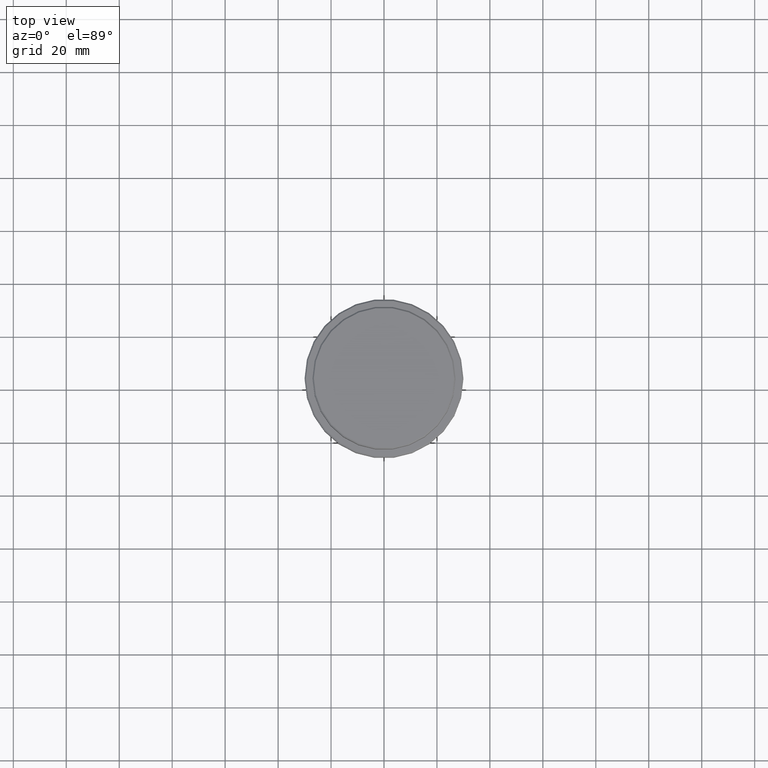
[diagram: clean part render]
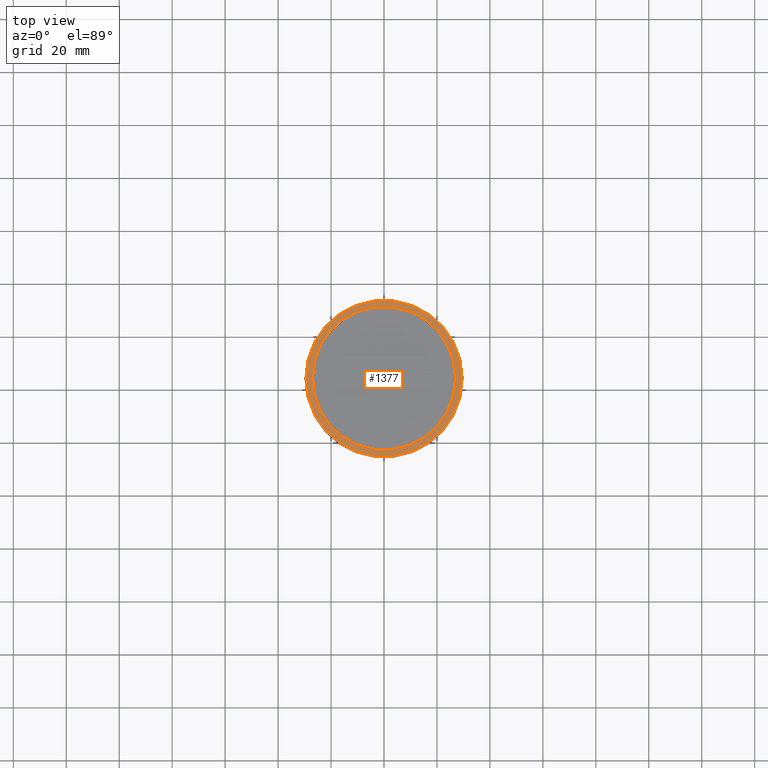
[diagram: same view with one face highlighted and labeled with its STEP entity id]
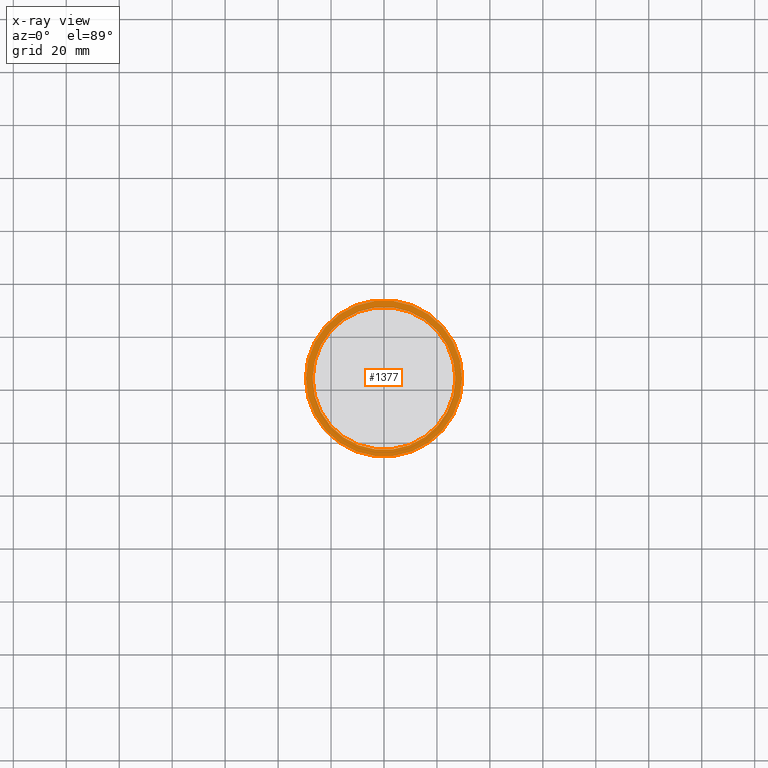
[diagram: x-ray of the same camera — body ghosted, the highlighted face saturated]
A machine part, top view. The second image highlights one B-rep face of the part: STEP entity #1377.
The next image is the same camera in x-ray: the body ghosted, the highlighted face saturated — about 0% of this face is hidden behind the body in this view.
In plain terms, the highlighted planar face has unit normal (0, -0, 1).
Its self-contained STEP definition (entity closure, byte-faithful):
#44 = EDGE_CURVE ( 'NONE', #1208, #888, #700, .T. ) ;
#132 = CARTESIAN_POINT ( 'NONE',  ( 0.000000000000000000, 0.000000000000000000, -12.00000000000000178 ) ) ;
#142 = DIRECTION ( 'NONE',  ( 1.000000000000000000, 0.000000000000000000, 0.000000000000000000 ) ) ;
#189 = AXIS2_PLACEMENT_3D ( 'NONE', #132, #1334, #582 ) ;
#197 = EDGE_LOOP ( 'NONE', ( #976, #483 ) ) ;
#200 = EDGE_CURVE ( 'NONE', #839, #1347, #957, .T. ) ;
#301 = EDGE_CURVE ( 'NONE', #888, #1208, #805, .T. ) ;
#386 = CARTESIAN_POINT ( 'NONE',  ( 0.000000000000000000, 26.49999999999999645, -12.00000000000000178 ) ) ;
#406 = EDGE_CURVE ( 'NONE', #1347, #839, #1243, .T. ) ;
#413 = AXIS2_PLACEMENT_3D ( 'NONE', #1088, #1413, #1317 ) ;
#435 = DIRECTION ( 'NONE',  ( 1.000000000000000000, 0.000000000000000000, 0.000000000000000000 ) ) ;
#451 = CARTESIAN_POINT ( 'NONE',  ( 29.50000000000000000, 3.643324227463375391E-15, -12.00000000000000178 ) ) ;
#483 = ORIENTED_EDGE ( 'NONE', *, *, #301, .T. ) ;
#566 = CARTESIAN_POINT ( 'NONE',  ( -29.50000000000000000, 0.000000000000000000, -12.00000000000000178 ) ) ;
#582 = DIRECTION ( 'NONE',  ( 1.000000000000000000, 0.000000000000000000, 0.000000000000000000 ) ) ;
#606 = FACE_OUTER_BOUND ( 'NONE', #197, .T. ) ;
#647 = CARTESIAN_POINT ( 'NONE',  ( 0.000000000000000000, 0.000000000000000000, -12.00000000000000178 ) ) ;
#700 = CIRCLE ( 'NONE', #413, 29.50000000000000000 ) ;
#734 = DIRECTION ( 'NONE',  ( 0.000000000000000000, -0.000000000000000000, 1.000000000000000000 ) ) ;
#805 = CIRCLE ( 'NONE', #189, 29.50000000000000000 ) ;
#822 = DIRECTION ( 'NONE',  ( 1.000000000000000000, 0.000000000000000000, 0.000000000000000000 ) ) ;
#839 = VERTEX_POINT ( 'NONE', #998 ) ;
#852 = ORIENTED_EDGE ( 'NONE', *, *, #200, .T. ) ;
#873 = AXIS2_PLACEMENT_3D ( 'NONE', #1120, #1349, #142 ) ;
#888 = VERTEX_POINT ( 'NONE', #451 ) ;
#905 = EDGE_LOOP ( 'NONE', ( #852, #1379 ) ) ;
#957 = CIRCLE ( 'NONE', #1382, 26.99999999999999289 ) ;
#976 = ORIENTED_EDGE ( 'NONE', *, *, #44, .T. ) ;
#998 = CARTESIAN_POINT ( 'NONE',  ( 26.99999999999999289, 0.000000000000000000, -12.00000000000000178 ) ) ;
#1038 = PLANE ( 'NONE',  #1131 ) ;
#1074 = DIRECTION ( 'NONE',  ( 0.000000000000000000, 0.000000000000000000, -1.000000000000000000 ) ) ;
#1088 = CARTESIAN_POINT ( 'NONE',  ( 0.000000000000000000, 0.000000000000000000, -12.00000000000000178 ) ) ;
#1120 = CARTESIAN_POINT ( 'NONE',  ( 0.000000000000000000, 0.000000000000000000, -12.00000000000000178 ) ) ;
#1131 = AXIS2_PLACEMENT_3D ( 'NONE', #386, #734, #822 ) ;
#1208 = VERTEX_POINT ( 'NONE', #566 ) ;
#1243 = CIRCLE ( 'NONE', #873, 26.99999999999999289 ) ;
#1249 = CARTESIAN_POINT ( 'NONE',  ( -26.99999999999999289, 3.306546357697852944E-15, -12.00000000000000178 ) ) ;
#1278 = FACE_BOUND ( 'NONE', #905, .T. ) ;
#1317 = DIRECTION ( 'NONE',  ( 1.000000000000000000, 0.000000000000000000, 0.000000000000000000 ) ) ;
#1334 = DIRECTION ( 'NONE',  ( -0.000000000000000000, -0.000000000000000000, 1.000000000000000000 ) ) ;
#1347 = VERTEX_POINT ( 'NONE', #1249 ) ;
#1349 = DIRECTION ( 'NONE',  ( 0.000000000000000000, 0.000000000000000000, -1.000000000000000000 ) ) ;
#1377 = ADVANCED_FACE ( 'NONE', ( #606, #1278 ), #1038, .T. ) ;
#1379 = ORIENTED_EDGE ( 'NONE', *, *, #406, .T. ) ;
#1382 = AXIS2_PLACEMENT_3D ( 'NONE', #647, #1074, #435 ) ;
#1413 = DIRECTION ( 'NONE',  ( -0.000000000000000000, -0.000000000000000000, 1.000000000000000000 ) ) ;